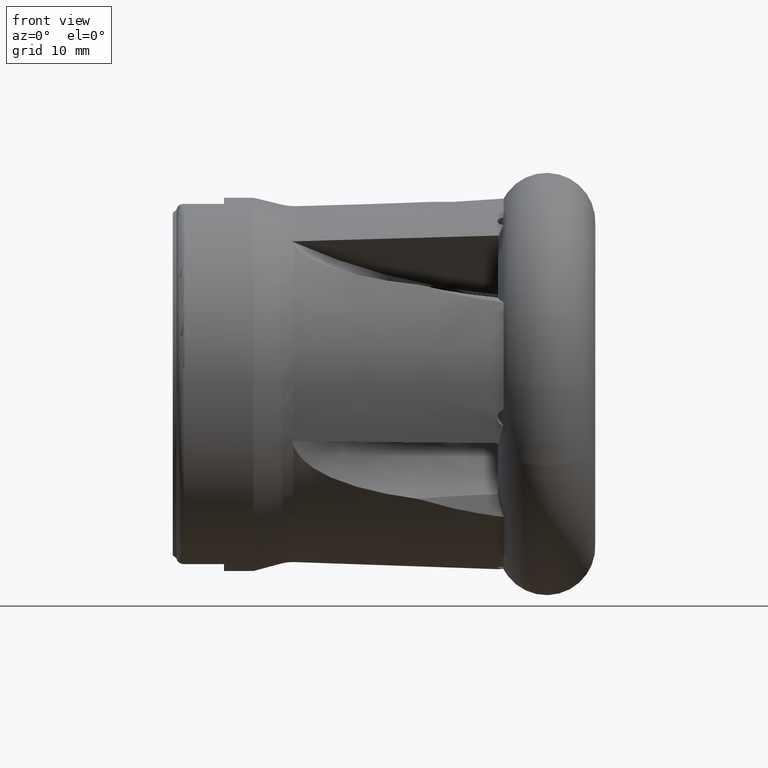
[diagram: clean part render]
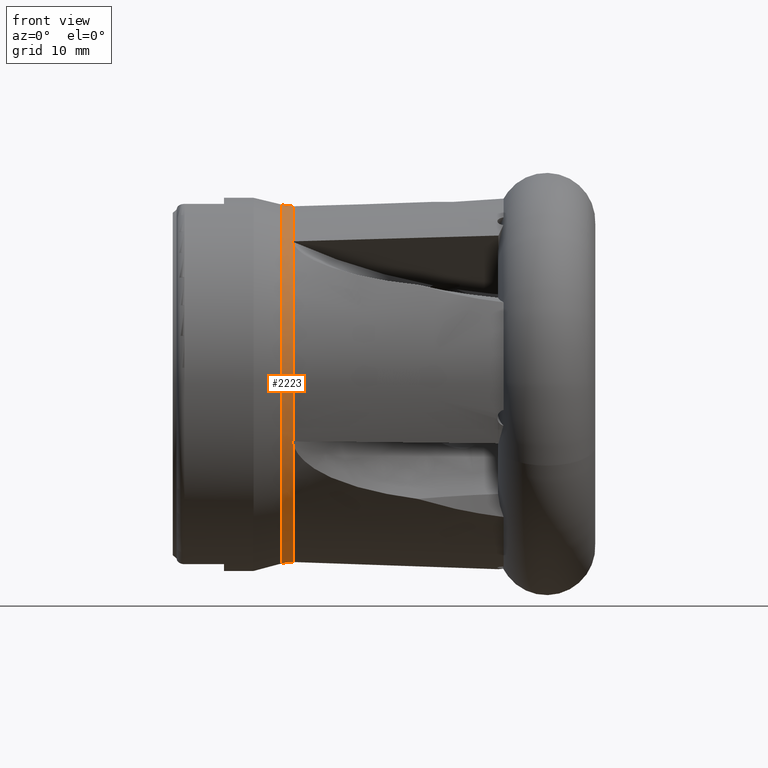
[diagram: same view with one face highlighted and labeled with its STEP entity id]
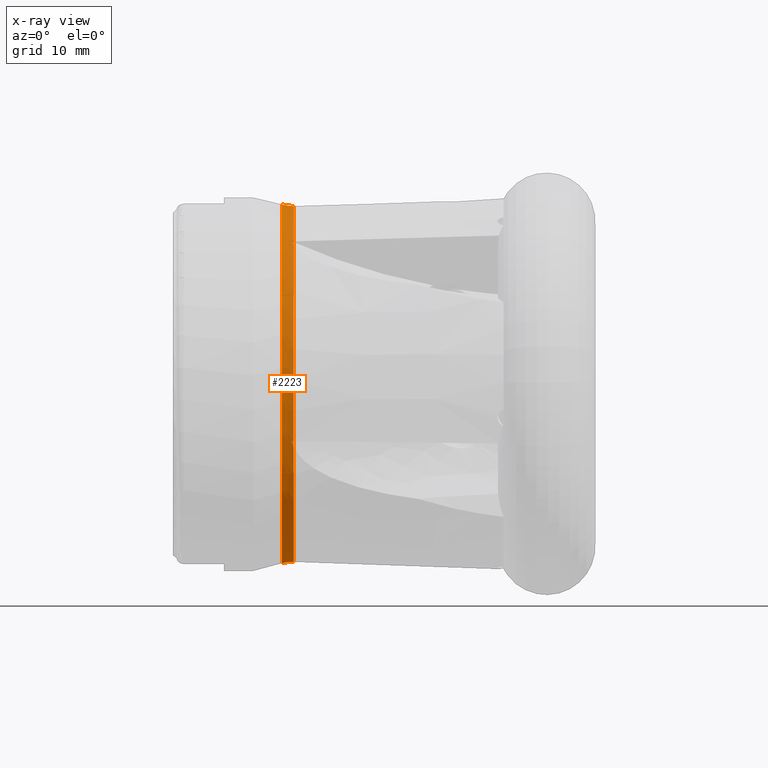
[diagram: x-ray of the same camera — body ghosted, the highlighted face saturated]
A machine part, front view. The second image highlights one B-rep face of the part: STEP entity #2223.
The next image is the same camera in x-ray: the body ghosted, the highlighted face saturated — about 0% of this face is hidden behind the body in this view.
In plain terms, the highlighted toroidal blend (fillet) surface has major radius 26.904 mm and minor (blend) radius 5 mm.
Its self-contained STEP definition (entity closure, byte-faithful):
#4 = CARTESIAN_POINT ( 'NONE',  ( -35.97935803595341000, 12.63917814820827300, 17.88971376165204300 ) ) ;
#13 = EDGE_CURVE ( 'NONE', #1289, #2568, #1251, .T. ) ;
#30 = CARTESIAN_POINT ( 'NONE',  ( -35.76786732149803100, 0.9628693406797984600, -21.88586330498318900 ) ) ;
#61 = ORIENTED_EDGE ( 'NONE', *, *, #506, .F. ) ;
#71 = CARTESIAN_POINT ( 'NONE',  ( -35.85491274374862100, 0.7438088274120277000, -21.89245824665475500 ) ) ;
#147 = CARTESIAN_POINT ( 'NONE',  ( -35.92735432220276000, 0.5201513456643062100, -21.89877281356943000 ) ) ;
#188 = CARTESIAN_POINT ( 'NONE',  ( -35.97935803597776100, 0.2899999999999994800, -21.90220497430753400 ) ) ;
#213 = CARTESIAN_POINT ( 'NONE',  ( -35.83853494373372000, -20.74103951976879000, -7.044096305347010500 ) ) ;
#256 = DIRECTION ( 'NONE',  ( 1.000000000000000000, -0.0000000000000000000, -0.0000000000000000000 ) ) ;
#261 = CARTESIAN_POINT ( 'NONE',  ( -35.76786732149803100, 0.0000000000000000000, 0.0000000000000000000 ) ) ;
#280 = B_SPLINE_CURVE_WITH_KNOTS ( 'NONE', 3,
 ( #1327, #213, #2128, #2536 ),
 .UNSPECIFIED., .F., .F.,
 ( 4, 4 ),
 ( 1.979229095147628700E-007, 0.0002099995249670280900 ),
 .UNSPECIFIED. ) ;
#319 = DIRECTION ( 'NONE',  ( 0.0000000000000000000, 0.0000000000000000000, -1.000000000000000000 ) ) ;
#329 = CIRCLE ( 'NONE', #3054, 22.07435880495766500 ) ;
#331 = CARTESIAN_POINT ( 'NONE',  ( -35.83853494373371300, 20.92026937650616600, -6.492483525896121300 ) ) ;
#355 = ORIENTED_EDGE ( 'NONE', *, *, #2019, .F. ) ;
#403 = CARTESIAN_POINT ( 'NONE',  ( -35.76786732149803100, -13.11011802982022400, 17.55115196264375000 ) ) ;
#506 = EDGE_CURVE ( 'NONE', #4976, #1402, #1746, .T. ) ;
#524 = ORIENTED_EDGE ( 'NONE', *, *, #4038, .F. ) ;
#557 = DIRECTION ( 'NONE',  ( 1.000000000000000000, -0.0000000000000000000, -0.0000000000000000000 ) ) ;
#598 = CARTESIAN_POINT ( 'NONE',  ( -35.76786732149803100, -20.51714992131661900, -7.678846858601118300 ) ) ;
#603 = VERTEX_POINT ( 'NONE', #954 ) ;
#637 = VERTEX_POINT ( 'NONE', #3209 ) ;
#641 = CARTESIAN_POINT ( 'NONE',  ( -35.97935803597776100, 0.2899999999999994800, -21.90220497430753400 ) ) ;
#708 = ORIENTED_EDGE ( 'NONE', *, *, #4572, .F. ) ;
#725 = EDGE_CURVE ( 'NONE', #5040, #1289, #280, .T. ) ;
#729 = ORIENTED_EDGE ( 'NONE', *, *, #2728, .F. ) ;
#745 = CARTESIAN_POINT ( 'NONE',  ( -35.85491274374811600, -13.46981807575571600, 17.27417091090921600 ) ) ;
#765 = CARTESIAN_POINT ( 'NONE',  ( -35.76786732149803100, -13.64316534433058300, 17.14007495196236500 ) ) ;
#815 = CARTESIAN_POINT ( 'NONE',  ( -35.92735432220300900, -13.29258698140773000, 17.41074207219304500 ) ) ;
#892 = CARTESIAN_POINT ( 'NONE',  ( -35.97935803596489300, -13.10840800494923100, 17.54879831532776900 ) ) ;
#935 = VERTEX_POINT ( 'NONE', #4 ) ;
#936 = ORIENTED_EDGE ( 'NONE', *, *, #1046, .F. ) ;
#954 = CARTESIAN_POINT ( 'NONE',  ( -35.76786732149803100, 0.2899999999999990400, -21.90511424237798400 ) ) ;
#1038 = DIRECTION ( 'NONE',  ( 0.0000000000000000000, 0.0000000000000000000, -1.000000000000000000 ) ) ;
#1046 = EDGE_CURVE ( 'NONE', #637, #4449, #2247, .T. ) ;
#1072 = CARTESIAN_POINT ( 'NONE',  ( -35.80310777078950900, 0.2899999999999989300, -21.90388351093117000 ) ) ;
#1095 = CARTESIAN_POINT ( 'NONE',  ( -35.76786732149803100, -13.11011802982022400, 17.55115196264375000 ) ) ;
#1115 = ORIENTED_EDGE ( 'NONE', *, *, #725, .F. ) ;
#1120 = ORIENTED_EDGE ( 'NONE', *, *, #2692, .F. ) ;
#1140 = AXIS2_PLACEMENT_3D ( 'NONE', #2913, #3798, #3806 ) ;
#1143 = VERTEX_POINT ( 'NONE', #4743 ) ;
#1145 = CIRCLE ( 'NONE', #2925, 21.90703380130753400 ) ;
#1251 = B_SPLINE_CURVE_WITH_KNOTS ( 'NONE', 3,
 ( #1662, #3964, #4254, #4658 ),
 .UNSPECIFIED., .F., .F.,
 ( 4, 4 ),
 ( 4.024751372857001300E-015, 0.0007055129496290566400 ),
 .UNSPECIFIED. ) ;
#1289 = VERTEX_POINT ( 'NONE', #3418 ) ;
#1307 = CARTESIAN_POINT ( 'NONE',  ( -35.97935803596486400, 20.91984969040916600, -6.492347161616975400 ) ) ;
#1311 = B_SPLINE_CURVE_WITH_KNOTS ( 'NONE', 3,
 ( #2717, #2765, #2693, #2705 ),
 .UNSPECIFIED., .F., .F.,
 ( 4, 4 ),
 ( 4.025381719455677700E-015, 0.0007055129496290877600 ),
 .UNSPECIFIED. ) ;
#1327 = CARTESIAN_POINT ( 'NONE',  ( -35.76786732149803100, -20.74338671203464600, -7.044858954345032800 ) ) ;
#1354 = B_SPLINE_CURVE_WITH_KNOTS ( 'NONE', 3,
 ( #1455, #2417, #2429, #2396 ),
 .UNSPECIFIED., .F., .F.,
 ( 4, 4 ),
 ( 1.979229095916836200E-007, 0.0002099995249549738000 ),
 .UNSPECIFIED. ) ;
#1379 = EDGE_CURVE ( 'NONE', #603, #4584, #2398, .T. ) ;
#1402 = VERTEX_POINT ( 'NONE', #2334 ) ;
#1455 = CARTESIAN_POINT ( 'NONE',  ( -35.76786732149803100, 12.64088817308301300, 17.89206740897319700 ) ) ;
#1486 = B_SPLINE_CURVE_WITH_KNOTS ( 'NONE', 3,
 ( #1571, #4850, #3083, #3372 ),
 .UNSPECIFIED., .F., .F.,
 ( 4, 4 ),
 ( 7.613372288784679800E-015, 0.0007055129496290951300 ),
 .UNSPECIFIED. ) ;
#1569 = ORIENTED_EDGE ( 'NONE', *, *, #2226, .F. ) ;
#1571 = CARTESIAN_POINT ( 'NONE',  ( -35.97935803595341000, 12.63917814820827300, 17.88971376165204300 ) ) ;
#1574 = AXIS2_PLACEMENT_3D ( 'NONE', #4587, #1598, #3168 ) ;
#1598 = DIRECTION ( 'NONE',  ( 1.000000000000000000, -0.0000000000000000000, -0.0000000000000000000 ) ) ;
#1610 = CARTESIAN_POINT ( 'NONE',  ( -35.83853494373372700, -13.10866738522179300, 17.54915532164544000 ) ) ;
#1630 = VERTEX_POINT ( 'NONE', #1307 ) ;
#1662 = CARTESIAN_POINT ( 'NONE',  ( -35.97935803596488600, -20.74061983367177900, -7.043959941067854800 ) ) ;
#1690 = EDGE_CURVE ( 'NONE', #1143, #1143, #329, .T. ) ;
#1702 = ORIENTED_EDGE ( 'NONE', *, *, #1690, .T. ) ;
#1746 = B_SPLINE_CURVE_WITH_KNOTS ( 'NONE', 3,
 ( #403, #1610, #1884, #2688 ),
 .UNSPECIFIED., .F., .F.,
 ( 4, 4 ),
 ( 1.979229095916836200E-007, 0.0002099995249671116900 ),
 .UNSPECIFIED. ) ;
#1797 = EDGE_LOOP ( 'NONE', ( #1702 ) ) ;
#1822 = CARTESIAN_POINT ( 'NONE',  ( -35.76786732149803100, 20.92261656877201800, -6.493246174894141000 ) ) ;
#1859 = CARTESIAN_POINT ( 'NONE',  ( -35.76786732149803100, 0.9628693406797984600, -21.88586330498318900 ) ) ;
#1884 = CARTESIAN_POINT ( 'NONE',  ( -35.90903092710619400, -13.10810213017925500, 17.54837731482443500 ) ) ;
#1982 = DIRECTION ( 'NONE',  ( 0.0000000000000000000, 0.0000000000000000000, -1.000000000000000000 ) ) ;
#2019 = EDGE_CURVE ( 'NONE', #3643, #3656, #1145, .T. ) ;
#2128 = CARTESIAN_POINT ( 'NONE',  ( -35.90903092710619400, -20.74012491789764600, -7.043799133184864800 ) ) ;
#2163 = DIRECTION ( 'NONE',  ( 1.000000000000000000, -0.0000000000000000000, -0.0000000000000000000 ) ) ;
#2183 = CARTESIAN_POINT ( 'NONE',  ( -35.76786732149803100, 12.64088817308301300, 17.89206740897319700 ) ) ;
#2212 = EDGE_CURVE ( 'NONE', #935, #3156, #1486, .T. ) ;
#2223 = ADVANCED_FACE ( 'NONE', ( #3210, #3020 ), #3138, .F. ) ;
#2226 = EDGE_CURVE ( 'NONE', #3950, #5040, #3148, .T. ) ;
#2247 = CIRCLE ( 'NONE', #2591, 21.90703380130753400 ) ;
#2334 = CARTESIAN_POINT ( 'NONE',  ( -35.97935803596489300, -13.10840800494923100, 17.54879831532776900 ) ) ;
#2379 = ORIENTED_EDGE ( 'NONE', *, *, #1379, .F. ) ;
#2396 = CARTESIAN_POINT ( 'NONE',  ( -35.97935803595341000, 12.63917814820827300, 17.88971376165204300 ) ) ;
#2398 = B_SPLINE_CURVE_WITH_KNOTS ( 'NONE', 3,
 ( #2618, #1072, #2661, #2668, #2677 ),
 .UNSPECIFIED., .F., .F.,
 ( 4, 1, 4 ),
 ( 0.03062142708385898500, 0.03072626113910303200, 0.03083109519434707900 ),
 .UNSPECIFIED. ) ;
#2411 = B_SPLINE_CURVE_WITH_KNOTS ( 'NONE', 3,
 ( #188, #147, #71, #30 ),
 .UNSPECIFIED., .F., .F.,
 ( 4, 4 ),
 ( 7.752045533271356700E-018, 0.0007055129496290838500 ),
 .UNSPECIFIED. ) ;
#2417 = CARTESIAN_POINT ( 'NONE',  ( -35.83853494372963400, 12.63943752848466700, 17.89007076797500400 ) ) ;
#2422 = CARTESIAN_POINT ( 'NONE',  ( -35.76786732149803100, 0.0000000000000000000, 0.0000000000000000000 ) ) ;
#2429 = CARTESIAN_POINT ( 'NONE',  ( -35.90903092709803700, 12.63887227344211100, 17.88929276115397500 ) ) ;
#2510 = EDGE_CURVE ( 'NONE', #4449, #935, #1354, .T. ) ;
#2536 = CARTESIAN_POINT ( 'NONE',  ( -35.97935803596488600, -20.74061983367177900, -7.043959941067854800 ) ) ;
#2568 = VERTEX_POINT ( 'NONE', #598 ) ;
#2591 = AXIS2_PLACEMENT_3D ( 'NONE', #261, #256, #319 ) ;
#2618 = CARTESIAN_POINT ( 'NONE',  ( -35.76786732149803100, 0.2899999999999990400, -21.90511424237798400 ) ) ;
#2659 = ORIENTED_EDGE ( 'NONE', *, *, #2212, .F. ) ;
#2661 = CARTESIAN_POINT ( 'NONE',  ( -35.87359667620329900, 0.2899999999999990400, -21.90216824713661100 ) ) ;
#2668 = CARTESIAN_POINT ( 'NONE',  ( -35.94410158146616400, 0.2899999999999990900, -21.90194409426967300 ) ) ;
#2677 = CARTESIAN_POINT ( 'NONE',  ( -35.97935803597776100, 0.2899999999999994800, -21.90220497430753400 ) ) ;
#2681 = EDGE_LOOP ( 'NONE', ( #5074, #729, #355, #3013, #2379, #524, #4843, #1115, #1569, #708, #61, #1120, #2659, #3029, #936 ) ) ;
#2688 = CARTESIAN_POINT ( 'NONE',  ( -35.97935803596489300, -13.10840800494923100, 17.54879831532776900 ) ) ;
#2692 = EDGE_CURVE ( 'NONE', #3156, #4976, #4907, .T. ) ;
#2693 = CARTESIAN_POINT ( 'NONE',  ( -35.85491274374812300, 21.05081464143728500, -6.057737414671252400 ) ) ;
#2705 = CARTESIAN_POINT ( 'NONE',  ( -35.76786732149802400, 21.11223590058184000, -5.847360537012748200 ) ) ;
#2717 = CARTESIAN_POINT ( 'NONE',  ( -35.97935803596486400, 20.91984969040916600, -6.492347161616975400 ) ) ;
#2728 = EDGE_CURVE ( 'NONE', #3656, #1630, #4882, .T. ) ;
#2729 = CARTESIAN_POINT ( 'NONE',  ( -35.76786732149803100, 0.0000000000000000000, 0.0000000000000000000 ) ) ;
#2765 = CARTESIAN_POINT ( 'NONE',  ( -35.92735432220303700, 20.98770618866916800, -6.272399628596792500 ) ) ;
#2805 = B_SPLINE_CURVE_WITH_KNOTS ( 'NONE', 3,
 ( #892, #815, #745, #765 ),
 .UNSPECIFIED., .F., .F.,
 ( 4, 4 ),
 ( 4.010164427942599900E-015, 0.0007055129496290722500 ),
 .UNSPECIFIED. ) ;
#2913 = CARTESIAN_POINT ( 'NONE',  ( -35.76786732149803100, 0.0000000000000000000, 0.0000000000000000000 ) ) ;
#2925 = AXIS2_PLACEMENT_3D ( 'NONE', #2729, #557, #1038 ) ;
#3003 = DIRECTION ( 'NONE',  ( 1.000000000000000000, -0.0000000000000000000, -0.0000000000000000000 ) ) ;
#3013 = ORIENTED_EDGE ( 'NONE', *, *, #4627, .F. ) ;
#3020 = FACE_OUTER_BOUND ( 'NONE', #1797, .T. ) ;
#3029 = ORIENTED_EDGE ( 'NONE', *, *, #2510, .F. ) ;
#3054 = AXIS2_PLACEMENT_3D ( 'NONE', #4987, #4995, #5000 ) ;
#3083 = CARTESIAN_POINT ( 'NONE',  ( -35.85491274374767600, 12.26631011186816200, 18.14857062946662600 ) ) ;
#3138 = TOROIDAL_SURFACE ( 'NONE', #1574, 26.90398793640301600, 5.000000000000002700 ) ;
#3143 = CARTESIAN_POINT ( 'NONE',  ( -35.76786732149803100, 20.92261656877201800, -6.493246174894141000 ) ) ;
#3148 = CIRCLE ( 'NONE', #1140, 21.90703380130753400 ) ;
#3156 = VERTEX_POINT ( 'NONE', #4431 ) ;
#3168 = DIRECTION ( 'NONE',  ( 0.0000000000000000000, 0.0000000000000000000, -1.000000000000000000 ) ) ;
#3209 = CARTESIAN_POINT ( 'NONE',  ( -35.76786732149802400, 21.11223590058184000, -5.847360537012748200 ) ) ;
#3210 = FACE_OUTER_BOUND ( 'NONE', #2681, .T. ) ;
#3372 = CARTESIAN_POINT ( 'NONE',  ( -35.76786732149802400, 12.08521002438571500, 18.27199574863451300 ) ) ;
#3418 = CARTESIAN_POINT ( 'NONE',  ( -35.97935803596488600, -20.74061983367177900, -7.043959941067854800 ) ) ;
#3457 = CARTESIAN_POINT ( 'NONE',  ( -35.90903092710618000, 20.91935477463502500, -6.492186353733975700 ) ) ;
#3643 = VERTEX_POINT ( 'NONE', #1859 ) ;
#3656 = VERTEX_POINT ( 'NONE', #1822 ) ;
#3798 = DIRECTION ( 'NONE',  ( 1.000000000000000000, -0.0000000000000000000, -0.0000000000000000000 ) ) ;
#3806 = DIRECTION ( 'NONE',  ( 0.0000000000000000000, 0.0000000000000000000, -1.000000000000000000 ) ) ;
#3950 = VERTEX_POINT ( 'NONE', #5077 ) ;
#3960 = CARTESIAN_POINT ( 'NONE',  ( -35.97935803596486400, 20.91984969040916600, -6.492347161616975400 ) ) ;
#3964 = CARTESIAN_POINT ( 'NONE',  ( -35.92735432220303700, -20.66623497775553600, -7.261786282101454900 ) ) ;
#3974 = CARTESIAN_POINT ( 'NONE',  ( -35.76786732149803100, -20.74338671203464600, -7.044858954345032800 ) ) ;
#4029 = AXIS2_PLACEMENT_3D ( 'NONE', #4965, #3003, #5029 ) ;
#4038 = EDGE_CURVE ( 'NONE', #2568, #603, #4255, .T. ) ;
#4254 = CARTESIAN_POINT ( 'NONE',  ( -35.85491274374814500, -20.59111550496378100, -7.472545879049461900 ) ) ;
#4255 = CIRCLE ( 'NONE', #4304, 21.90703380130753400 ) ;
#4304 = AXIS2_PLACEMENT_3D ( 'NONE', #2422, #2163, #1982 ) ;
#4431 = CARTESIAN_POINT ( 'NONE',  ( -35.76786732149802400, 12.08521002438571500, 18.27199574863451300 ) ) ;
#4449 = VERTEX_POINT ( 'NONE', #2183 ) ;
#4572 = EDGE_CURVE ( 'NONE', #1402, #3950, #2805, .T. ) ;
#4584 = VERTEX_POINT ( 'NONE', #641 ) ;
#4587 = CARTESIAN_POINT ( 'NONE',  ( -35.94236480501056300, 0.0000000000000000000, 0.0000000000000000000 ) ) ;
#4627 = EDGE_CURVE ( 'NONE', #4584, #3643, #2411, .T. ) ;
#4658 = CARTESIAN_POINT ( 'NONE',  ( -35.76786732149803100, -20.51714992131661900, -7.678846858601118300 ) ) ;
#4743 = CARTESIAN_POINT ( 'NONE',  ( -37.23646003052315500, 0.0000000000000000000, -22.07435880495766500 ) ) ;
#4826 = EDGE_CURVE ( 'NONE', #1630, #637, #1311, .T. ) ;
#4843 = ORIENTED_EDGE ( 'NONE', *, *, #13, .F. ) ;
#4850 = CARTESIAN_POINT ( 'NONE',  ( -35.92735432220330000, 12.45096442483222400, 18.02221665207377300 ) ) ;
#4882 = B_SPLINE_CURVE_WITH_KNOTS ( 'NONE', 3,
 ( #3143, #331, #3457, #3960 ),
 .UNSPECIFIED., .F., .F.,
 ( 4, 4 ),
 ( 1.979229095914381100E-007, 0.0002099995249670832800 ),
 .UNSPECIFIED. ) ;
#4907 = CIRCLE ( 'NONE', #4029, 21.90703380130753400 ) ;
#4965 = CARTESIAN_POINT ( 'NONE',  ( -35.76786732149803100, 0.0000000000000000000, 0.0000000000000000000 ) ) ;
#4976 = VERTEX_POINT ( 'NONE', #1095 ) ;
#4987 = CARTESIAN_POINT ( 'NONE',  ( -37.23646003052315500, 0.0000000000000000000, 0.0000000000000000000 ) ) ;
#4995 = DIRECTION ( 'NONE',  ( 1.000000000000000000, -0.0000000000000000000, -0.0000000000000000000 ) ) ;
#5000 = DIRECTION ( 'NONE',  ( 0.0000000000000000000, 0.0000000000000000000, -1.000000000000000000 ) ) ;
#5029 = DIRECTION ( 'NONE',  ( 0.0000000000000000000, 0.0000000000000000000, -1.000000000000000000 ) ) ;
#5040 = VERTEX_POINT ( 'NONE', #3974 ) ;
#5074 = ORIENTED_EDGE ( 'NONE', *, *, #4826, .F. ) ;
#5077 = CARTESIAN_POINT ( 'NONE',  ( -35.76786732149803100, -13.64316534433058300, 17.14007495196236500 ) ) ;